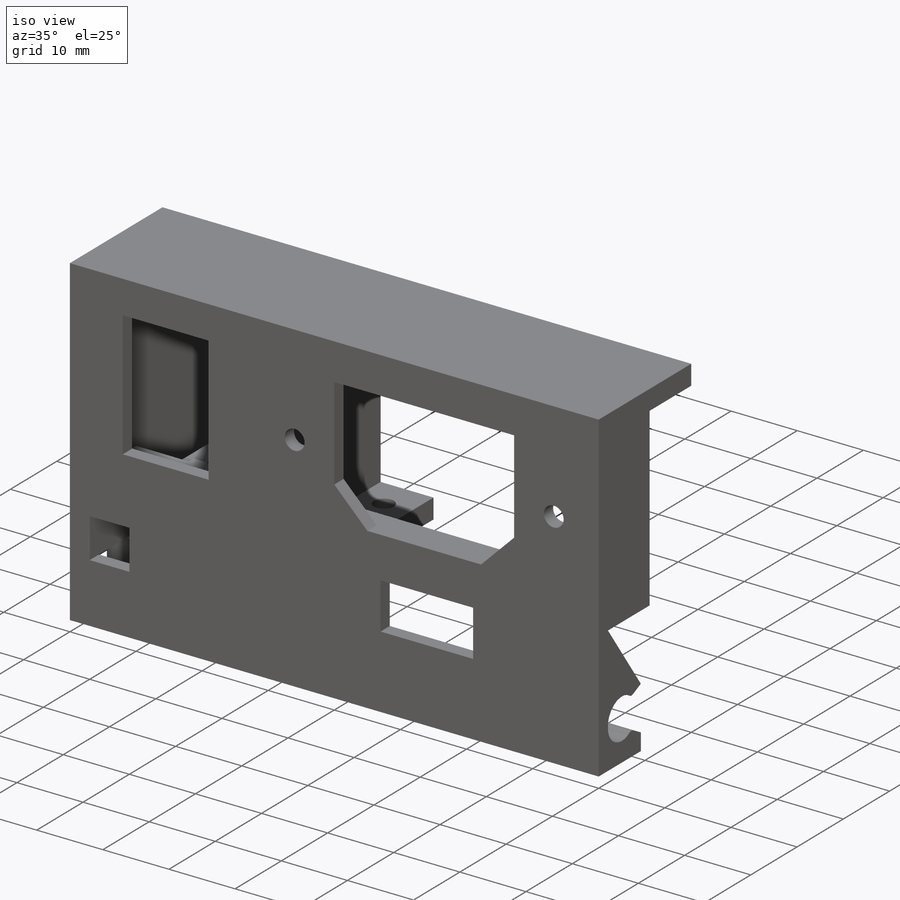
[diagram: iso view]
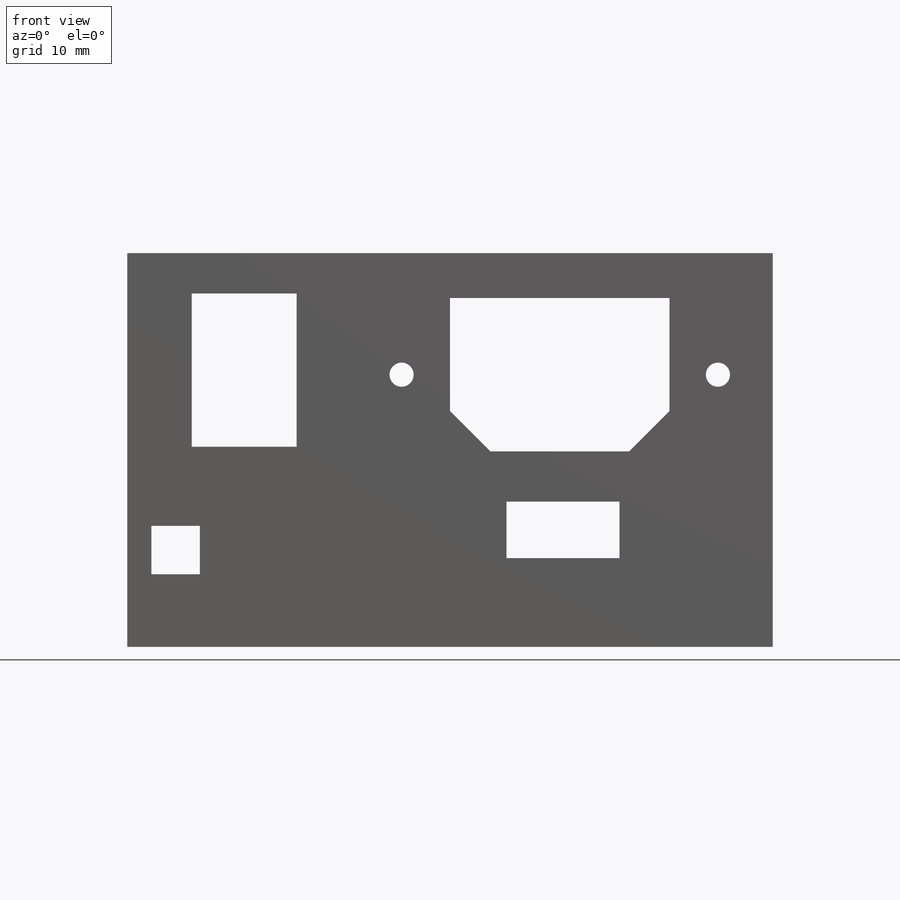
[diagram: front view]
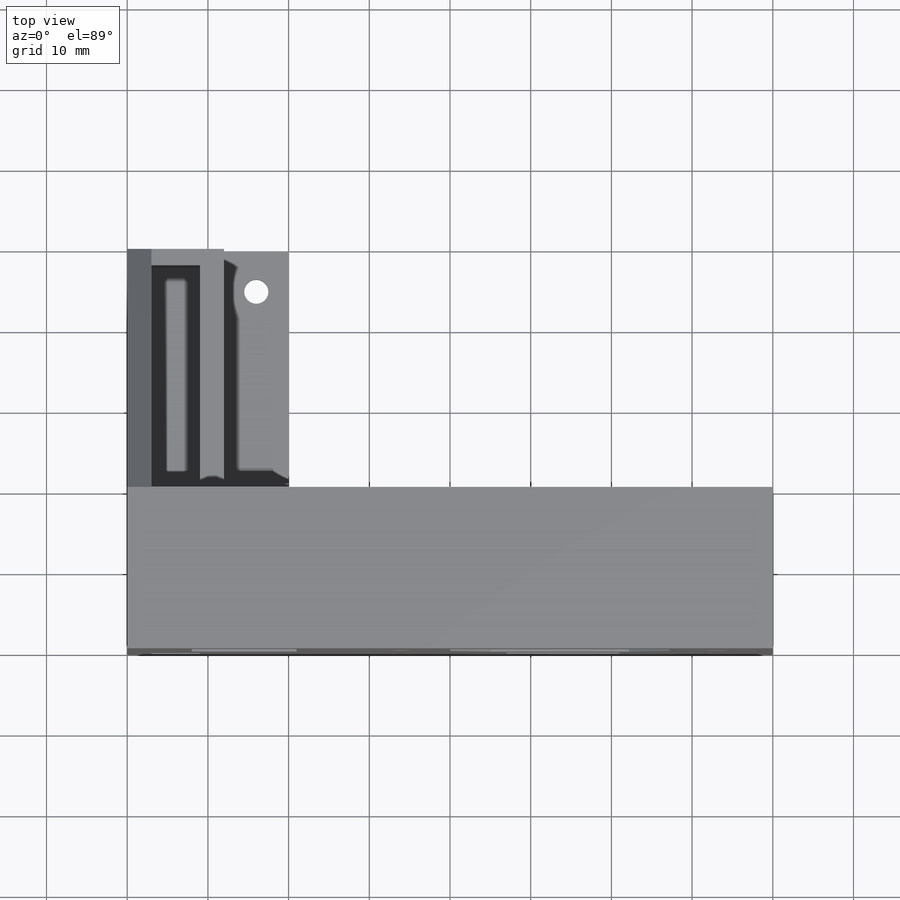
[diagram: top view]
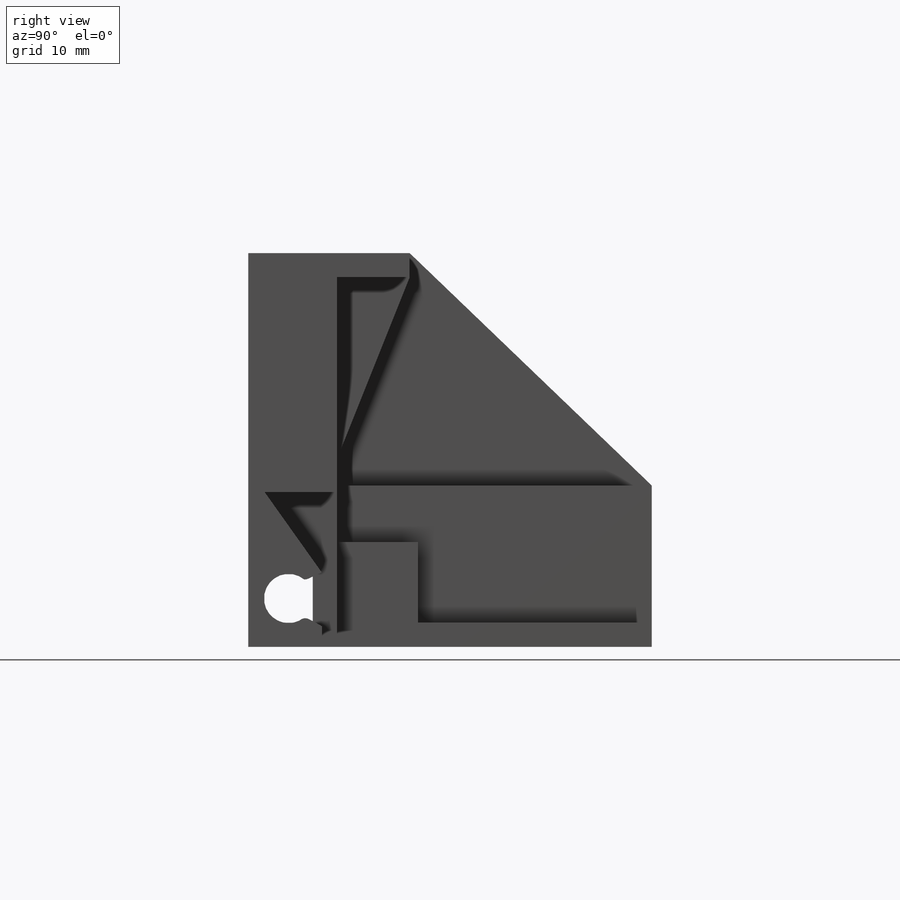
[diagram: right view]
SOLIDWORKS PART (.sldprt)
format: sldprt  version: not decoded by parser v0  size: 901,632 bytes
history: native  units: mm
features: sketch x29, extrude x19, cut_extrude x7, move_body x4, plane x3, material x1, fillet x1 + 11 further entries (+33 scaffold rows collapsed; 12 parser-record rows omitted)
feature tree (120):
  scaffold x33  (default folders/planes/origin — collapsed)
  material  "Material <não especificado>"
  plane  "Plano frontal"
  plane  "Plano superior"
  plane  "Plano direito"
  sketch  "Esboço1"  dims[c1.D1=50.0mm c1.D2=20.0mm c1.D3=20.0mm c1.D4=10.0mm c2.D2=35.0mm c2.D5=3.0mm c2.D6=6.0mm c2.D7=2.0mm c2.D8=6.0mm c2.D9=2.0mm c2.D10=2.0mm c2.D11=2.0mm]
  extrude  "Ressalto-extrusão1"  Depth=2mm
  extrude  "Ressalto-extrusão2"  [1 undecoded]
  sketch  "Esboço1<3>"  dims[D1=8.0mm]
  extrude  "Ressalto-extrusão3"  [1 undecoded]
  sketch  "Esboço1<4>"  dims[D1=8.0mm]
  extrude  "Ressalto-extrusão5"  [1 undecoded]
  sketch  "Esboço1<5>"  dims[D1=6.2mm D19=8.0mm]
  extrude  "Ressalto-extrusão6"  [1 undecoded]
  sketch  "Esboço1<6>"  dims[D1=5.0mm D19=14.0mm]
  sketch  "Esboço2"
  sketch  "Esboço3"
  sketch  "Esboço4"  dims[D1=6.0mm]
  cut_extrude  "Corte-extrusão1"  Depth=5mm
  sketch  "Esboço5"  dims[c1.D1=3.0mm c1.D4=3.0mm c1.D2=5.0mm c1.D3=5.0mm c2.D4=30.0mm]
  cut_extrude  "Corte-extrusão2"  Depth=10mm
  sketch  "Esboço6"  dims[c1.D7=3.0mm c1.D1=27.2mm c1.D2=19.0mm c1.D3=5.0mm c1.D4=5.0mm c1.D5=5.0mm c1.D6=5.0mm c1.D8=6.0mm c1.D9=6.0mm c1.D10=9.5mm c1.D11=9.5mm c1.D12=19.0mm c1.D13=13.0mm c1.D14=8.0mm c1.D15=34.0mm c1.D16=27.0mm c1.D17=~15.755621mm c1.D18=90.0deg c2.D18=~7.33648mm c2.D19=90.0deg c3.D19=~1.33648mm c3.D18=~1.33648mm c4.D19=90.0deg c4.D17=14.0mm c4.D18=7.0mm c5.D19=90.0mm c5.D20=80.0mm c6.D19=47.0mm c6.D21=2.0mm c6.D22=0.8mm c6.D23=0.8mm c6.D24=4.0mm c6.D25=1.2mm]
  extrude  "Ressalto-extrusão7"  [1 undecoded]
  extrude  "Ressalto-extrusão8"  [1 undecoded]
  sketch  "Esboço6<3>"
  sketch  "Esboço7"  dims[D1=2.0mm D2=2.0mm D3=18.0mm D4=8.0mm D5=~3.595313mm]
  cut_extrude  "Corte-extrusão3"  Depth=10mm
  "cantoneira esq"
  parser-record x12  (decoder bookkeeping rows leaked as tree rows — omitted from the tree; the rows remain in map.json)
  move_body  "Corpo-Mover/Copiar2"
  "Coincidente1"
  "cantoneira esq1"
  move_body  "Corpo-Mover/Copiar4"
  "Distância1"
  "Distância2"
  "pé lateral outro"
  move_body  "Corpo-Mover/Copiar6"
  "Distância4"
  "Distância5"
  "direito pé lateral outro"
  move_body  "Corpo-Mover/Copiar8"
  "Distância7"
  "Distância8"
  sketch  "Esboço8"  dims[c1.D1=150.0mm c1.D2=150.0mm c2.D1=120.0mm c2.D2=145.0mm]
  sketch  "Esboço11"  dims[D1=3.0mm]
  extrude  "Ressalto-extrusão11"  Depth=20mm
  sketch  "Esboço12"  dims[D1=3.0mm D2=4.0mm]
  extrude  "Ressalto-extrusão12"  [1 undecoded]
  sketch  "Esboço9"
  extrude  "Ressalto-extrusão9"  [1 undecoded]
  sketch  "Esboço10"
  extrude  "Ressalto-extrusão10"  Depth=3mm
  sketch  "Esboço13"
  cut_extrude  "Corte-extrusão4"  Depth=10mm
  sketch  "Esboço14"  dims[D1=1.0mm]
  extrude  "Ressalto-extrusão13"  [1 undecoded]
  sketch  "Esboço15"  dims[D1=1.0mm]
  extrude  "Ressalto-extrusão14"  [1 undecoded]
  sketch  "Esboço16"  dims[D1=10.0mm D2=10.0mm]
  extrude  "Ressalto-extrusão15"  Depth=10mm
  sketch  "Esboço17"  dims[D1=1.0mm]
  extrude  "Ressalto-extrusão16"  [1 undecoded]
  sketch  "Esboço18"  dims[D1=1.0mm]
  extrude  "Ressalto-extrusão17"  [1 undecoded]
  sketch  "Esboço19"  dims[D1=0.0mm D2=0.0mm]
  cut_extrude  "Corte-extrusão5"  Depth=15mm
  sketch  "Esboço20"  dims[D1=10.0mm D2=10.0mm]
  extrude  "Ressalto-extrusão18"  Depth=10mm
  sketch  "Esboço21"  dims[D1=0.0mm]
  cut_extrude  "Corte-extrusão6"  Depth=10mm
  sketch  "Esboço22"  dims[D1=0.0mm]
  extrude  "Ressalto-extrusão19"  [1 undecoded]
  sketch  "Esboço23"  dims[D1=5.5mm D2=5.5mm]
  cut_extrude  "Corte-extrusão7"  Depth=4mm
  sketch  "Esboço24"  dims[D2=6.1mm D1=4.5mm]
  extrude  "Ressalto-extrusão20"  Depth=10mm
  fillet  "Filete1"  Radius=1mm
decode coverage: 37 of 60 modeling features carry decoded parameters; 11 rows unclassified (native names shown)
note: ~ marks probable driven/reference dimensions
note: 13 parameter values undecoded
summary: no parameter record found for 13 features
note: suppression state not decoded; provenance and decode notes live in map.json
